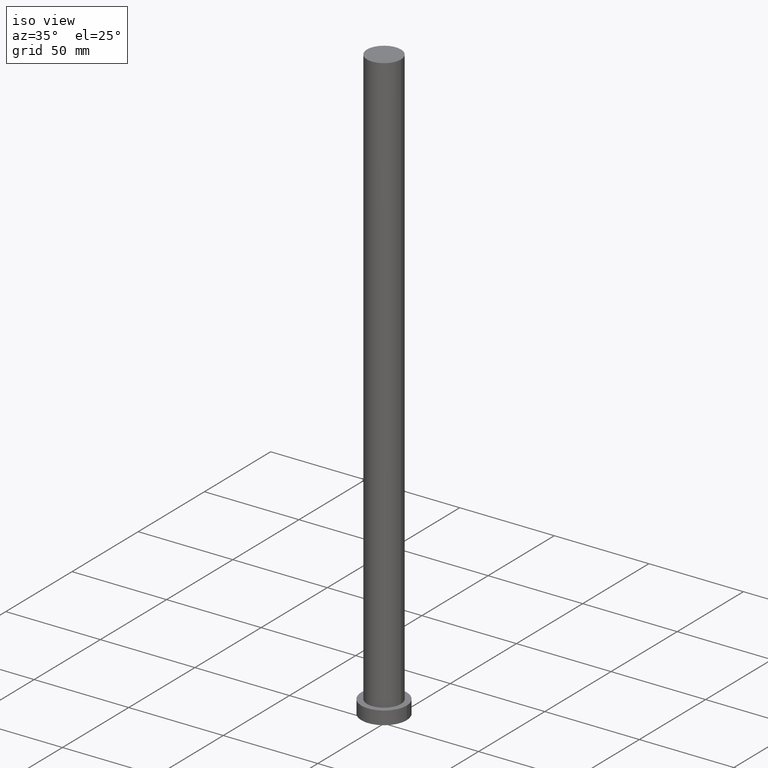
[diagram: clean part render]
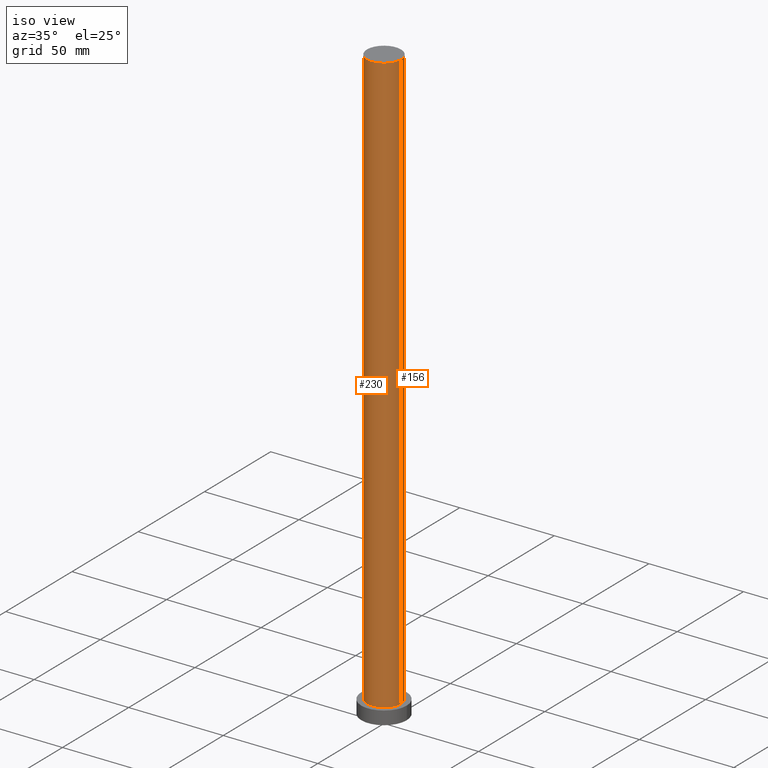
[diagram: same view with one multi-face feature highlighted, each face labeled with its STEP entity id]
A machine part, iso view. The highlighted faces form ONE feature: a constant-radius fillet chain: 2 tangent blend faces with common blend radius 9 mm. The faces share edges in the B-rep.
Their STEP definitions:
[1] entity #230 (Cylinder):
#10 = LINE ( 'NONE', #42, #104 ) ;
#13 = DIRECTION ( 'NONE',  ( 0.000000000000000000, 0.000000000000000000, 1.000000000000000000 ) ) ;
#19 = CARTESIAN_POINT ( 'NONE',  ( 9.000000000000000000, 1.102182119232617714E-15, 315.0000000000000000 ) ) ;
#33 = CARTESIAN_POINT ( 'NONE',  ( 9.000000000000000000, 1.102182119232617714E-15, 7.000000000000000000 ) ) ;
#42 = CARTESIAN_POINT ( 'NONE',  ( 9.000000000000000000, 1.102182119232617714E-15, 315.0000000000000000 ) ) ;
#43 = EDGE_CURVE ( 'NONE', #188, #254, #210, .T. ) ;
#68 = ORIENTED_EDGE ( 'NONE', *, *, #70, .F. ) ;
#70 = EDGE_CURVE ( 'NONE', #234, #254, #10, .T. ) ;
#76 = AXIS2_PLACEMENT_3D ( 'NONE', #201, #133, #203 ) ;
#79 = EDGE_CURVE ( 'NONE', #209, #234, #242, .T. ) ;
#83 = DIRECTION ( 'NONE',  ( -0.000000000000000000, -0.000000000000000000, -1.000000000000000000 ) ) ;
#104 = VECTOR ( 'NONE', #204, 1000.000000000000000 ) ;
#106 = DIRECTION ( 'NONE',  ( -1.000000000000000000, 0.000000000000000000, 0.000000000000000000 ) ) ;
#107 = CYLINDRICAL_SURFACE ( 'NONE', #183, 9.000000000000000000 ) ;
#124 = CARTESIAN_POINT ( 'NONE',  ( -9.000000000000000000, 0.000000000000000000, 315.0000000000000000 ) ) ;
#130 = CARTESIAN_POINT ( 'NONE',  ( 0.000000000000000000, 0.000000000000000000, 315.0000000000000000 ) ) ;
#133 = DIRECTION ( 'NONE',  ( 0.000000000000000000, 0.000000000000000000, 1.000000000000000000 ) ) ;
#146 = AXIS2_PLACEMENT_3D ( 'NONE', #130, #13, #175 ) ;
#152 = ORIENTED_EDGE ( 'NONE', *, *, #43, .T. ) ;
#155 = LINE ( 'NONE', #252, #167 ) ;
#167 = VECTOR ( 'NONE', #213, 1000.000000000000000 ) ;
#171 = EDGE_LOOP ( 'NONE', ( #68, #190, #222, #152 ) ) ;
#175 = DIRECTION ( 'NONE',  ( 1.000000000000000000, 0.000000000000000000, 0.000000000000000000 ) ) ;
#183 = AXIS2_PLACEMENT_3D ( 'NONE', #184, #83, #106 ) ;
#184 = CARTESIAN_POINT ( 'NONE',  ( 0.000000000000000000, 0.000000000000000000, 315.0000000000000000 ) ) ;
#188 = VERTEX_POINT ( 'NONE', #246 ) ;
#190 = ORIENTED_EDGE ( 'NONE', *, *, #79, .F. ) ;
#200 = EDGE_CURVE ( 'NONE', #209, #188, #155, .T. ) ;
#201 = CARTESIAN_POINT ( 'NONE',  ( 0.000000000000000000, 0.000000000000000000, 7.000000000000000000 ) ) ;
#203 = DIRECTION ( 'NONE',  ( 1.000000000000000000, 0.000000000000000000, 0.000000000000000000 ) ) ;
#204 = DIRECTION ( 'NONE',  ( -0.000000000000000000, -0.000000000000000000, -1.000000000000000000 ) ) ;
#209 = VERTEX_POINT ( 'NONE', #124 ) ;
#210 = CIRCLE ( 'NONE', #76, 9.000000000000000000 ) ;
#213 = DIRECTION ( 'NONE',  ( -0.000000000000000000, -0.000000000000000000, -1.000000000000000000 ) ) ;
#218 = FACE_OUTER_BOUND ( 'NONE', #171, .T. ) ;
#222 = ORIENTED_EDGE ( 'NONE', *, *, #200, .T. ) ;
#230 = ADVANCED_FACE ( 'NONE', ( #218 ), #107, .T. ) ;
#234 = VERTEX_POINT ( 'NONE', #19 ) ;
#242 = CIRCLE ( 'NONE', #146, 9.000000000000000000 ) ;
#246 = CARTESIAN_POINT ( 'NONE',  ( -9.000000000000000000, 0.000000000000000000, 7.000000000000000000 ) ) ;
#252 = CARTESIAN_POINT ( 'NONE',  ( -9.000000000000000000, 0.000000000000000000, 315.0000000000000000 ) ) ;
#254 = VERTEX_POINT ( 'NONE', #33 ) ;
[2] entity #156 (Cylinder):
#4 = CIRCLE ( 'NONE', #161, 9.000000000000000000 ) ;
#10 = LINE ( 'NONE', #42, #104 ) ;
#11 = CIRCLE ( 'NONE', #122, 9.000000000000000000 ) ;
#19 = CARTESIAN_POINT ( 'NONE',  ( 9.000000000000000000, 1.102182119232617714E-15, 315.0000000000000000 ) ) ;
#21 = EDGE_CURVE ( 'NONE', #254, #188, #4, .T. ) ;
#24 = ORIENTED_EDGE ( 'NONE', *, *, #200, .F. ) ;
#31 = ORIENTED_EDGE ( 'NONE', *, *, #70, .T. ) ;
#33 = CARTESIAN_POINT ( 'NONE',  ( 9.000000000000000000, 1.102182119232617714E-15, 7.000000000000000000 ) ) ;
#42 = CARTESIAN_POINT ( 'NONE',  ( 9.000000000000000000, 1.102182119232617714E-15, 315.0000000000000000 ) ) ;
#70 = EDGE_CURVE ( 'NONE', #234, #254, #10, .T. ) ;
#89 = CARTESIAN_POINT ( 'NONE',  ( 0.000000000000000000, 0.000000000000000000, 7.000000000000000000 ) ) ;
#93 = FACE_OUTER_BOUND ( 'NONE', #220, .T. ) ;
#104 = VECTOR ( 'NONE', #204, 1000.000000000000000 ) ;
#110 = DIRECTION ( 'NONE',  ( 0.000000000000000000, 0.000000000000000000, 1.000000000000000000 ) ) ;
#111 = ORIENTED_EDGE ( 'NONE', *, *, #118, .F. ) ;
#118 = EDGE_CURVE ( 'NONE', #234, #209, #11, .T. ) ;
#122 = AXIS2_PLACEMENT_3D ( 'NONE', #162, #110, #178 ) ;
#124 = CARTESIAN_POINT ( 'NONE',  ( -9.000000000000000000, 0.000000000000000000, 315.0000000000000000 ) ) ;
#127 = ORIENTED_EDGE ( 'NONE', *, *, #21, .T. ) ;
#135 = DIRECTION ( 'NONE',  ( -0.000000000000000000, -0.000000000000000000, -1.000000000000000000 ) ) ;
#144 = DIRECTION ( 'NONE',  ( -1.000000000000000000, 0.000000000000000000, 0.000000000000000000 ) ) ;
#155 = LINE ( 'NONE', #252, #167 ) ;
#156 = ADVANCED_FACE ( 'NONE', ( #93 ), #168, .T. ) ;
#159 = DIRECTION ( 'NONE',  ( 0.000000000000000000, 0.000000000000000000, 1.000000000000000000 ) ) ;
#161 = AXIS2_PLACEMENT_3D ( 'NONE', #89, #159, #176 ) ;
#162 = CARTESIAN_POINT ( 'NONE',  ( 0.000000000000000000, 0.000000000000000000, 315.0000000000000000 ) ) ;
#163 = CARTESIAN_POINT ( 'NONE',  ( 0.000000000000000000, 0.000000000000000000, 315.0000000000000000 ) ) ;
#167 = VECTOR ( 'NONE', #213, 1000.000000000000000 ) ;
#168 = CYLINDRICAL_SURFACE ( 'NONE', #221, 9.000000000000000000 ) ;
#176 = DIRECTION ( 'NONE',  ( 1.000000000000000000, 0.000000000000000000, 0.000000000000000000 ) ) ;
#178 = DIRECTION ( 'NONE',  ( 1.000000000000000000, 0.000000000000000000, 0.000000000000000000 ) ) ;
#188 = VERTEX_POINT ( 'NONE', #246 ) ;
#200 = EDGE_CURVE ( 'NONE', #209, #188, #155, .T. ) ;
#204 = DIRECTION ( 'NONE',  ( -0.000000000000000000, -0.000000000000000000, -1.000000000000000000 ) ) ;
#209 = VERTEX_POINT ( 'NONE', #124 ) ;
#213 = DIRECTION ( 'NONE',  ( -0.000000000000000000, -0.000000000000000000, -1.000000000000000000 ) ) ;
#220 = EDGE_LOOP ( 'NONE', ( #111, #31, #127, #24 ) ) ;
#221 = AXIS2_PLACEMENT_3D ( 'NONE', #163, #135, #144 ) ;
#234 = VERTEX_POINT ( 'NONE', #19 ) ;
#246 = CARTESIAN_POINT ( 'NONE',  ( -9.000000000000000000, 0.000000000000000000, 7.000000000000000000 ) ) ;
#252 = CARTESIAN_POINT ( 'NONE',  ( -9.000000000000000000, 0.000000000000000000, 315.0000000000000000 ) ) ;
#254 = VERTEX_POINT ( 'NONE', #33 ) ;